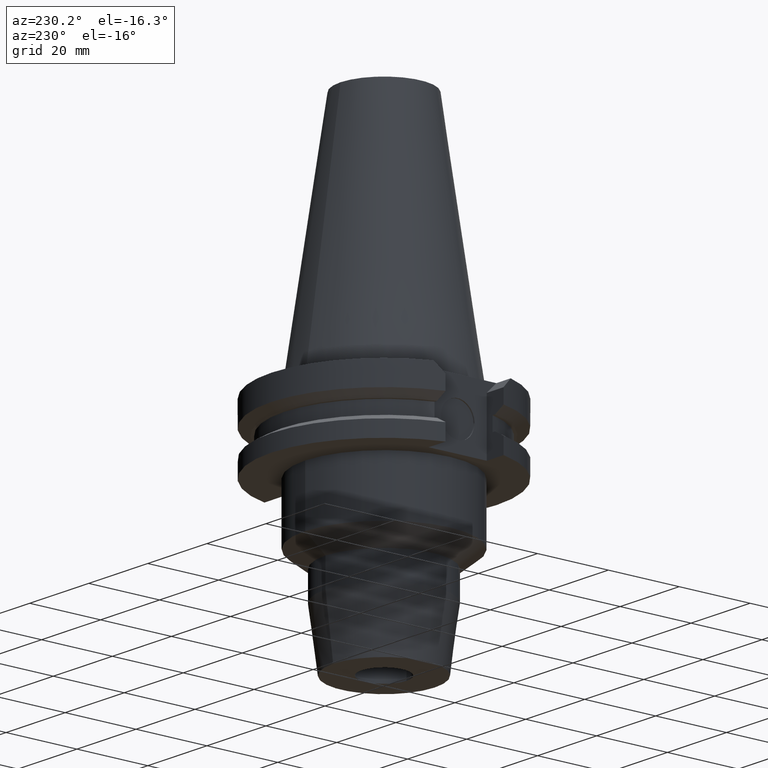
[diagram: clean part render]
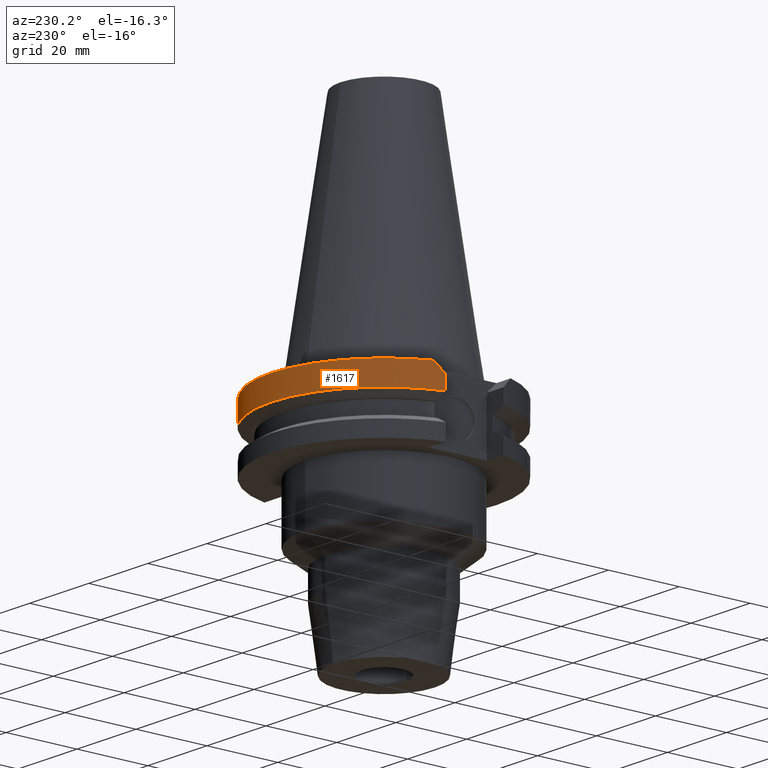
[diagram: same view with one face highlighted and labeled with its STEP entity id]
A machine part, auxiliary view. The second image highlights one B-rep face of the part: STEP entity #1617.
In plain terms, the highlighted cylindrical surface (partial cylindrical patch) has radius 31.75 mm, axis along (0, 0, 1).
Its self-contained STEP definition (entity closure, byte-faithful):
#99=CARTESIAN_POINT('',(0.E0,0.E0,-1.E0));
#100=DIRECTION('',(0.E0,0.E0,-1.E0));
#101=DIRECTION('',(-9.393382785306E-1,3.429921259843E-1,0.E0));
#102=AXIS2_PLACEMENT_3D('',#99,#100,#101);
#107=CARTESIAN_POINT('',(0.E0,0.E0,-1.E0));
#108=DIRECTION('',(0.E0,0.E0,-1.E0));
#109=DIRECTION('',(0.E0,1.E0,0.E0));
#110=AXIS2_PLACEMENT_3D('',#107,#108,#109);
#252=CARTESIAN_POINT('',(2.982399034335E1,1.089E1,-1.000000000001E0));
#253=CARTESIAN_POINT('',(3.015017741992E1,9.996685011754E0,-1.893314988246E0));
#254=CARTESIAN_POINT('',(3.043345108244E1,9.096596073173E0,-2.793403926827E0));
#255=CARTESIAN_POINT('',(3.067550162589E1,8.19E0,-3.7E0));
#274=DIRECTION('',(4.159171688284E-8,-1.557814748761E-7,1.E0));
#275=VECTOR('',#274,3.901327799924E0);
#276=CARTESIAN_POINT('',(3.067550146363E1,8.190000607755E0,-7.601327799924E0));
#277=LINE('',#276,#275);
#281=DIRECTION('',(-8.666812985319E-9,-3.246094584351E-8,-1.E0));
#282=VECTOR('',#281,3.901334362598E0);
#283=CARTESIAN_POINT('',(-3.067550162589E1,8.19E0,-3.7E0));
#284=LINE('',#283,#282);
#288=CARTESIAN_POINT('',(-3.067550162589E1,8.19E0,-3.7E0));
#289=CARTESIAN_POINT('',(-3.043345108244E1,9.096596073173E0,-2.793403926827E0));
#290=CARTESIAN_POINT('',(-3.015017741992E1,9.996685011754E0,-1.893314988246E0));
#291=CARTESIAN_POINT('',(-2.982399034335E1,1.089E1,-1.000000000001E0));
#503=CARTESIAN_POINT('',(0.E0,0.E0,-7.601333230926E0));
#504=DIRECTION('',(0.E0,0.E0,1.E0));
#505=DIRECTION('',(9.661575315241E-1,2.579527559055E-1,0.E0));
#506=AXIS2_PLACEMENT_3D('',#503,#504,#505);
#511=CARTESIAN_POINT('',(0.E0,0.E0,-7.601333230926E0));
#512=DIRECTION('',(0.E0,0.E0,1.E0));
#513=DIRECTION('',(0.E0,1.E0,0.E0));
#514=AXIS2_PLACEMENT_3D('',#511,#512,#513);
#1238=CARTESIAN_POINT('',(-2.982399034335E1,1.089E1,-1.E0));
#1239=VERTEX_POINT('',#1238);
#1240=CARTESIAN_POINT('',(0.E0,3.175E1,-1.E0));
#1241=CARTESIAN_POINT('',(2.982399034335E1,1.089E1,-1.E0));
#1242=VERTEX_POINT('',#1240);
#1243=VERTEX_POINT('',#1241);
#1332=CARTESIAN_POINT('',(3.067550162589E1,8.19E0,-3.7E0));
#1333=VERTEX_POINT('',#1332);
#1334=CARTESIAN_POINT('',(3.067550146363E1,8.190000607755E0,-7.601327799924E0));
#1335=VERTEX_POINT('',#1334);
#1353=VERTEX_POINT('',#288);
#1354=CARTESIAN_POINT('',(-3.067550165970E1,8.189999873359E0,
-7.601334362598E0));
#1355=VERTEX_POINT('',#1354);
#1356=CARTESIAN_POINT('',(0.E0,3.175E1,-7.601333230926E0));
#1357=VERTEX_POINT('',#1356);
#1598=CARTESIAN_POINT('',(0.E0,0.E0,-7.00875E1));
#1599=DIRECTION('',(0.E0,0.E0,1.E0));
#1600=DIRECTION('',(0.E0,1.E0,0.E0));
#1601=AXIS2_PLACEMENT_3D('',#1598,#1599,#1600);
#1602=CYLINDRICAL_SURFACE('',#1601,3.175E1);
#1603=ORIENTED_EDGE('',*,*,#1568,.T.);
#1604=ORIENTED_EDGE('',*,*,#1590,.F.);
#1605=ORIENTED_EDGE('',*,*,#1496,.F.);
#1606=ORIENTED_EDGE('',*,*,#1494,.F.);
#1608=ORIENTED_EDGE('',*,*,#1607,.F.);
#1610=ORIENTED_EDGE('',*,*,#1609,.T.);
#1612=ORIENTED_EDGE('',*,*,#1611,.F.);
#1614=ORIENTED_EDGE('',*,*,#1613,.F.);
#1615=EDGE_LOOP('',(#1603,#1604,#1605,#1606,#1608,#1610,#1612,#1614));
#1616=FACE_OUTER_BOUND('',#1615,.F.);
#103=CIRCLE('',#102,3.175E1);
#111=CIRCLE('',#110,3.175E1);
#256=B_SPLINE_CURVE_WITH_KNOTS('',3,(#252,#253,#254,#255),.UNSPECIFIED.,.F.,.F.,
(4,4),(0.E0,1.E0),.UNSPECIFIED.);
#292=B_SPLINE_CURVE_WITH_KNOTS('',3,(#288,#289,#290,#291),.UNSPECIFIED.,.F.,.F.,
(4,4),(0.E0,1.E0),.UNSPECIFIED.);
#507=CIRCLE('',#506,3.175E1);
#515=CIRCLE('',#514,3.175E1);
#1494=EDGE_CURVE('',#1239,#1242,#103,.T.);
#1496=EDGE_CURVE('',#1242,#1243,#111,.T.);
#1568=EDGE_CURVE('',#1335,#1333,#277,.T.);
#1590=EDGE_CURVE('',#1243,#1333,#256,.T.);
#1607=EDGE_CURVE('',#1353,#1239,#292,.T.);
#1609=EDGE_CURVE('',#1353,#1355,#284,.T.);
#1611=EDGE_CURVE('',#1357,#1355,#515,.T.);
#1613=EDGE_CURVE('',#1335,#1357,#507,.T.);
#1617=ADVANCED_FACE('',(#1616),#1602,.T.);